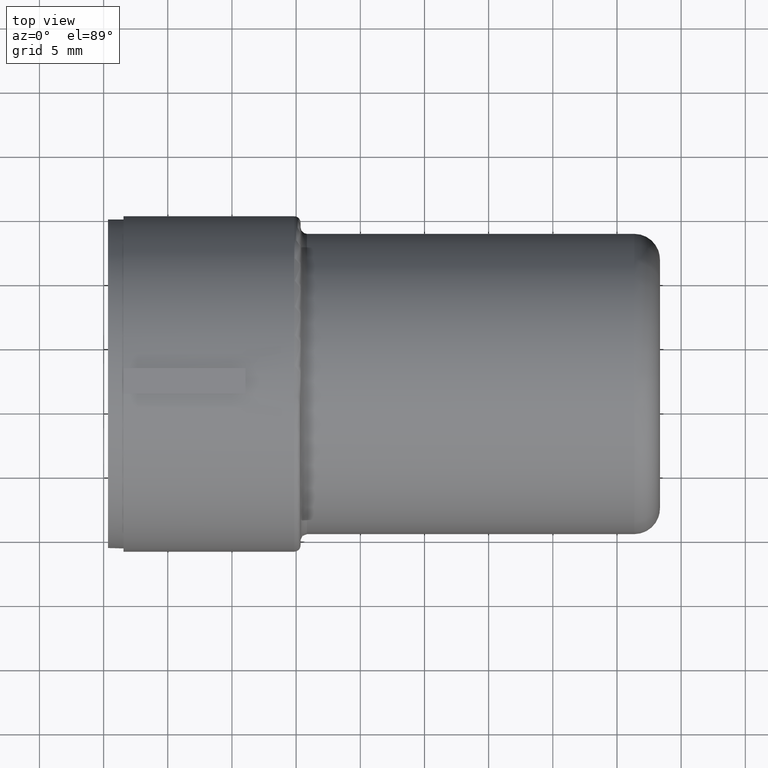
[diagram: clean part render]
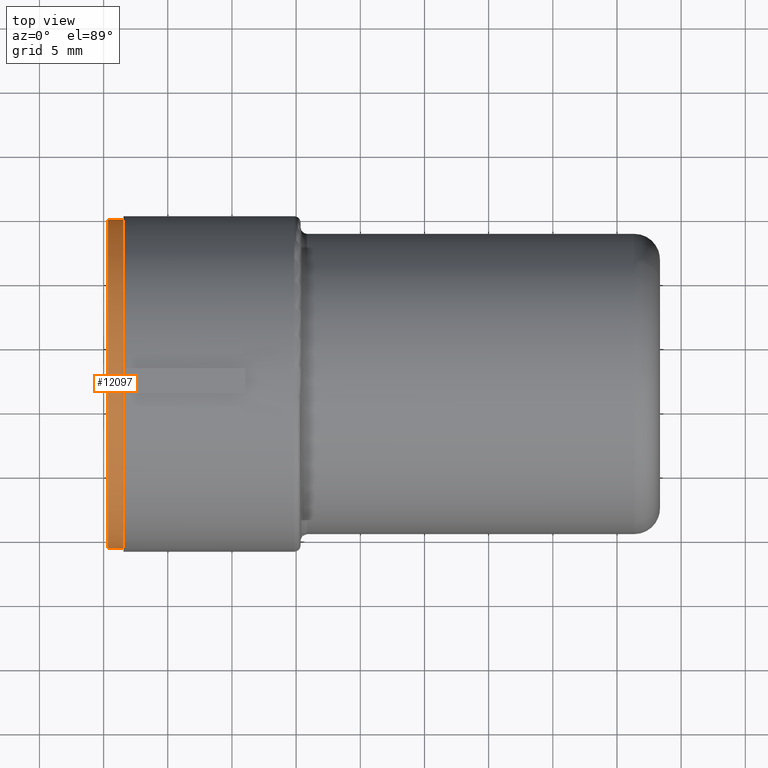
[diagram: same view with one face highlighted and labeled with its STEP entity id]
A machine part, top view. The second image highlights one B-rep face of the part: STEP entity #12097.
In plain terms, the highlighted cylindrical surface (bore or boss wall) has radius 12.817 mm, axis along (1, 0, 0).
Its self-contained STEP definition (entity closure, byte-faithful):
#335=CARTESIAN_POINT('',(-18.453181380705310,3.094000000000001,-12.777895268644549));
#336=VERTEX_POINT('',#335);
#337=CARTESIAN_POINT('',(-18.453181380705310,2.093928645136322,0.0));
#338=DIRECTION('',(1.0,1.813423E-013,0.0));
#339=DIRECTION('',(-1.813423E-013,1.0,0.0));
#340=AXIS2_PLACEMENT_3D('',#337,#338,#339);
#341=CIRCLE('',#340,12.816971179310174);
#342=EDGE_CURVE('',#336,#336,#341,.T.);
#12071=CARTESIAN_POINT('',(-19.653181380705313,14.910899824446496,0.0));
#12072=VERTEX_POINT('',#12071);
#12073=CARTESIAN_POINT('',(-19.653181380705306,2.093928645136322,0.0));
#12074=DIRECTION('',(1.0,1.813423E-013,0.0));
#12075=DIRECTION('',(-1.813423E-013,1.0,0.0));
#12076=AXIS2_PLACEMENT_3D('',#12073,#12074,#12075);
#12077=CIRCLE('',#12076,12.816971179310173);
#12078=EDGE_CURVE('',#12072,#12072,#12077,.T.);
#12086=CARTESIAN_POINT('',(-19.053181380705301,2.093928645136322,0.0));
#12087=DIRECTION('',(1.0,4.895456E-016,0.0));
#12088=DIRECTION('',(-1.813423E-013,1.0,0.0));
#12089=AXIS2_PLACEMENT_3D('',#12086,#12087,#12088);
#12090=CYLINDRICAL_SURFACE('',#12089,12.816971179310174);
#12091=ORIENTED_EDGE('',*,*,#342,.F.);
#12092=EDGE_LOOP('',(#12091));
#12093=FACE_OUTER_BOUND('',#12092,.T.);
#12094=ORIENTED_EDGE('',*,*,#12078,.T.);
#12095=EDGE_LOOP('',(#12094));
#12096=FACE_BOUND('',#12095,.T.);
#12097=ADVANCED_FACE('',(#12093,#12096),#12090,.T.);